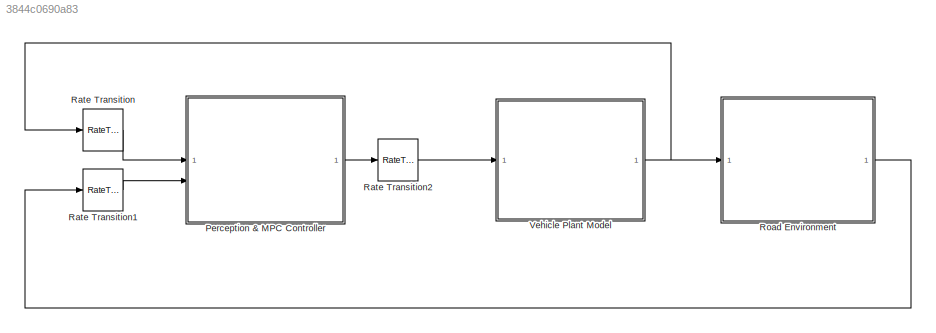
MODEL slx_3844c0690a83
KIND model
CONFIG AbsTol = auto
CONFIG EnableMultiTasking = off
CONFIG FixedStep = auto
CONFIG MaxStep = auto
CONFIG MinStep = auto
CONFIG RelTol = 1e-3
CONFIG SampleTimeConstraint = Unconstrained
CONFIG SolverName = VariableStepAuto
CONFIG StartTime = 0.0
CONFIG StopTime = 5
BLOCK [ModelReference] Perception & MPC Controller
  ModelNameDialog = obstacleAvoid_controller.slx
  ModelReferenceVersion = 8.0
BLOCK [RateTransition] Rate Transition
  OutPortSampleTime = TimeStep
BLOCK [RateTransition] Rate Transition1
  OutPortSampleTime = TimeStep
BLOCK [RateTransition] Rate Transition2
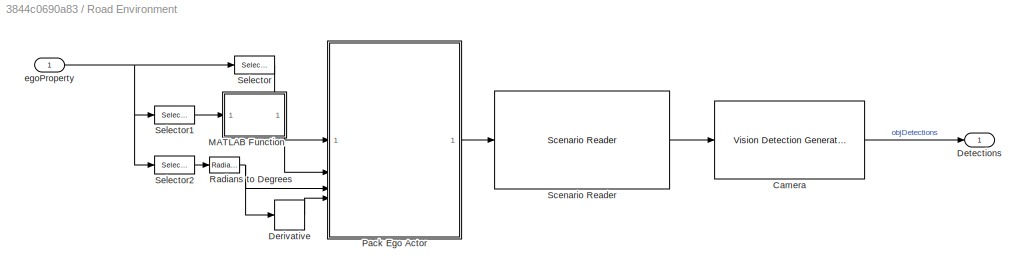
BLOCK [SubSystem] Road Environment
BLOCK [Reference] Road Environment/Camera  REF=drivingscenarioandsensors/Vision Detection Generator
  SourceBlock = drivingscenarioandsensors/Vision Detection Generator
  SourceType = visionDetectionGenerator
BLOCK [Derivative] Road Environment/Derivative
BLOCK [Outport] Road Environment/Detections
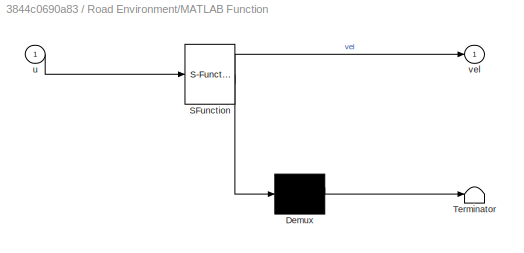
BLOCK [SubSystem] Road Environment/MATLAB Function
  ErrorFcn = Stateflow.Translate.translate
  PermitHierarchicalResolution = ExplicitOnly
  SFBlockType = MATLAB Function
  TreatAsAtomicUnit = on
BLOCK [Demux] Road Environment/MATLAB Function/ Demux 
  Outputs = 1
BLOCK [S-Function] Road Environment/MATLAB Function/ SFunction 
  EnableBusSupport = off
  FunctionName = sf_sfun
  PortCounts = [1 2]
  SFcnIsStateOwnerBlock = off
  SFunctionDeploymentMode = off
  Tag = Stateflow S-Function 2
BLOCK [Terminator] Road Environment/MATLAB Function/ Terminator 
BLOCK [Inport] Road Environment/MATLAB Function/u
BLOCK [Outport] Road Environment/MATLAB Function/vel
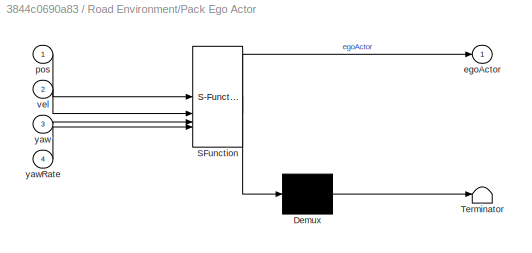
BLOCK [SubSystem] Road Environment/Pack Ego Actor
  ErrorFcn = Stateflow.Translate.translate
  PermitHierarchicalResolution = ExplicitOnly
  SFBlockType = MATLAB Function
  TreatAsAtomicUnit = on
BLOCK [Demux] Road Environment/Pack Ego Actor/ Demux 
  Outputs = 1
BLOCK [S-Function] Road Environment/Pack Ego Actor/ SFunction 
  EnableBusSupport = off
  FunctionName = sf_sfun
  PortCounts = [4 2]
  SFcnIsStateOwnerBlock = off
  SFunctionDeploymentMode = off
  Tag = Stateflow S-Function 5
BLOCK [Terminator] Road Environment/Pack Ego Actor/ Terminator 
BLOCK [Outport] Road Environment/Pack Ego Actor/egoActor
  VectorParamsAs1DForOutWhenUnconnected = off
BLOCK [Inport] Road Environment/Pack Ego Actor/pos
BLOCK [Inport] Road Environment/Pack Ego Actor/vel
  Port = 2
BLOCK [Inport] Road Environment/Pack Ego Actor/yaw
  Port = 3
BLOCK [Inport] Road Environment/Pack Ego Actor/yawRate
  Port = 4
BLOCK [Reference] Road Environment/Radians to Degrees  REF=simulink_extras/Transformations/Radians
to Degrees
  SourceBlock = simulink_extras/Transformations/Radians\nto Degrees
  SourceType = RadiansToDegrees
BLOCK [Reference] Road Environment/Scenario Reader  REF=drivingscenarioandsensors/Scenario Reader
  SourceBlock = drivingscenarioandsensors/Scenario Reader
  SourceType = driving.scenario.internal.ScenarioReader
BLOCK [Selector] Road Environment/Selector
  IndexOptions = Index vector (dialog)
  Indices = [1 2]
  InputPortWidth = 4
  OutputSizes = 1
BLOCK [Selector] Road Environment/Selector1
  IndexOptions = Index vector (dialog)
  Indices = [3 4]
  InputPortWidth = 4
  OutputSizes = 1
BLOCK [Selector] Road Environment/Selector2
  IndexOptions = Index vector (dialog)
  Indices = 3
  InputPortWidth = 4
  OutputSizes = 1
BLOCK [Inport] Road Environment/egoProperty
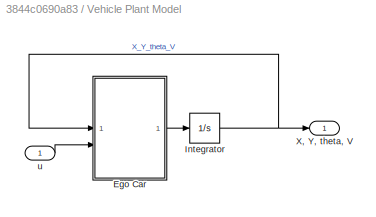
BLOCK [SubSystem] Vehicle Plant Model
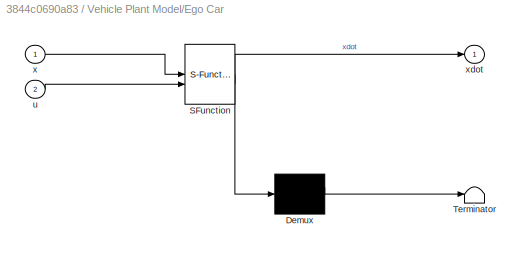
BLOCK [SubSystem] Vehicle Plant Model/Ego Car
  ErrorFcn = Stateflow.Translate.translate
  PermitHierarchicalResolution = ExplicitOnly
  SFBlockType = MATLAB Function
  TreatAsAtomicUnit = on
BLOCK [Demux] Vehicle Plant Model/Ego Car/ Demux 
  Outputs = 1
BLOCK [S-Function] Vehicle Plant Model/Ego Car/ SFunction 
  EnableBusSupport = off
  FunctionName = sf_sfun
  PortCounts = [2 2]
  SFcnIsStateOwnerBlock = off
  SFunctionDeploymentMode = off
  Tag = Stateflow S-Function 7
BLOCK [Terminator] Vehicle Plant Model/Ego Car/ Terminator 
BLOCK [Inport] Vehicle Plant Model/Ego Car/u
  Port = 2
BLOCK [Inport] Vehicle Plant Model/Ego Car/x
BLOCK [Outport] Vehicle Plant Model/Ego Car/xdot
BLOCK [Integrator] Vehicle Plant Model/Integrator
  InitialCondition = x0
BLOCK [Outport] Vehicle Plant Model/X, Y, theta, V
BLOCK [Inport] Vehicle Plant Model/u
LINE Perception & MPC Controller:1 -> Rate Transition2:1
LINE Rate Transition1:1 -> Perception & MPC Controller:2
LINE Rate Transition2:1 -> Vehicle Plant Model:1
LINE Rate Transition:1 -> Perception & MPC Controller:1
LINE Road Environment/Camera:1 -> Road Environment/Detections:1
LINE Road Environment/Derivative:1 -> Road Environment/Pack Ego Actor:4
LINE Road Environment/MATLAB Function:1 -> Road Environment/Pack Ego Actor:2
LINE Road Environment/Pack Ego Actor:1 -> Road Environment/Scenario Reader:1
NET Road Environment/Radians to Degrees:1 -> Road Environment/Derivative:1, Road Environment/Pack Ego Actor:3
LINE Road Environment/Scenario Reader:1 -> Road Environment/Camera:1
LINE Road Environment/Selector1:1 -> Road Environment/MATLAB Function:1
LINE Road Environment/Selector2:1 -> Road Environment/Radians to Degrees:1
LINE Road Environment/Selector:1 -> Road Environment/Pack Ego Actor:1
NET Road Environment/egoProperty:1 -> Road Environment/Selector1:1, Road Environment/Selector2:1, Road Environment/Selector:1
LINE Road Environment:1 -> Rate Transition1:1
LINE Vehicle Plant Model/Ego Car:1 -> Vehicle Plant Model/Integrator:1
NET Vehicle Plant Model/Integrator:1 -> Vehicle Plant Model/Ego Car:1, Vehicle Plant Model/X, Y, theta, V:1
LINE Vehicle Plant Model/u:1 -> Vehicle Plant Model/Ego Car:2
NET Vehicle Plant Model:1 -> Rate Transition:1, Road Environment:1
note: NET lines group one-source signal fan-out (src -> all destinations, sorted); 1:1 wires keep LINE
CHART Road Environment/MATLAB Function states=1 transitions=1
  STATE_LABEL 'eML_blk_kernel()'
  STATE_LABEL 'SCRIPT:\nfunction vel = fcn(u)\ntheta = u(1);\nV = u(2);\nvel = zeros(2,1);\n\nvel(1) = V*cos(theta);  %Vx\nvel(2) = V*sin(theta);  %Vy\n\n'
CHART Road Environment/Pack Ego Actor states=1 transitions=1
  STATE_LABEL 'eML_blk_kernel()'
  STATE_LABEL "SCRIPT:\nfunction egoActor = packEgo(pos,vel,yaw,yawRate)\n% Pack ego information into a single ego actor bus\n%\n% Imoprtant note:\n% Output is a bus of type BusActorsActors. This is the same bus used by the\n% Scenario Reader to output an individual actor. If you change the\n% output bus name of Scenario Reader, change the output bus name here\n% as well by clicking on 'Edit Data' in the menu above.\n\neg...<+215ch>"
CHART Vehicle Plant Model/Ego Car states=1 transitions=1
  STATE_LABEL 'eML_blk_kernel()'
  STATE_LABEL 'SCRIPT:\nfunction xdot = fcn(x,u)\n\nxdot = obstacleVehicleModelCT(x,u);\n\nend'
CHART  states=0 transitions=0
CHART  states=0 transitions=0
CHART  states=0 transitions=0
